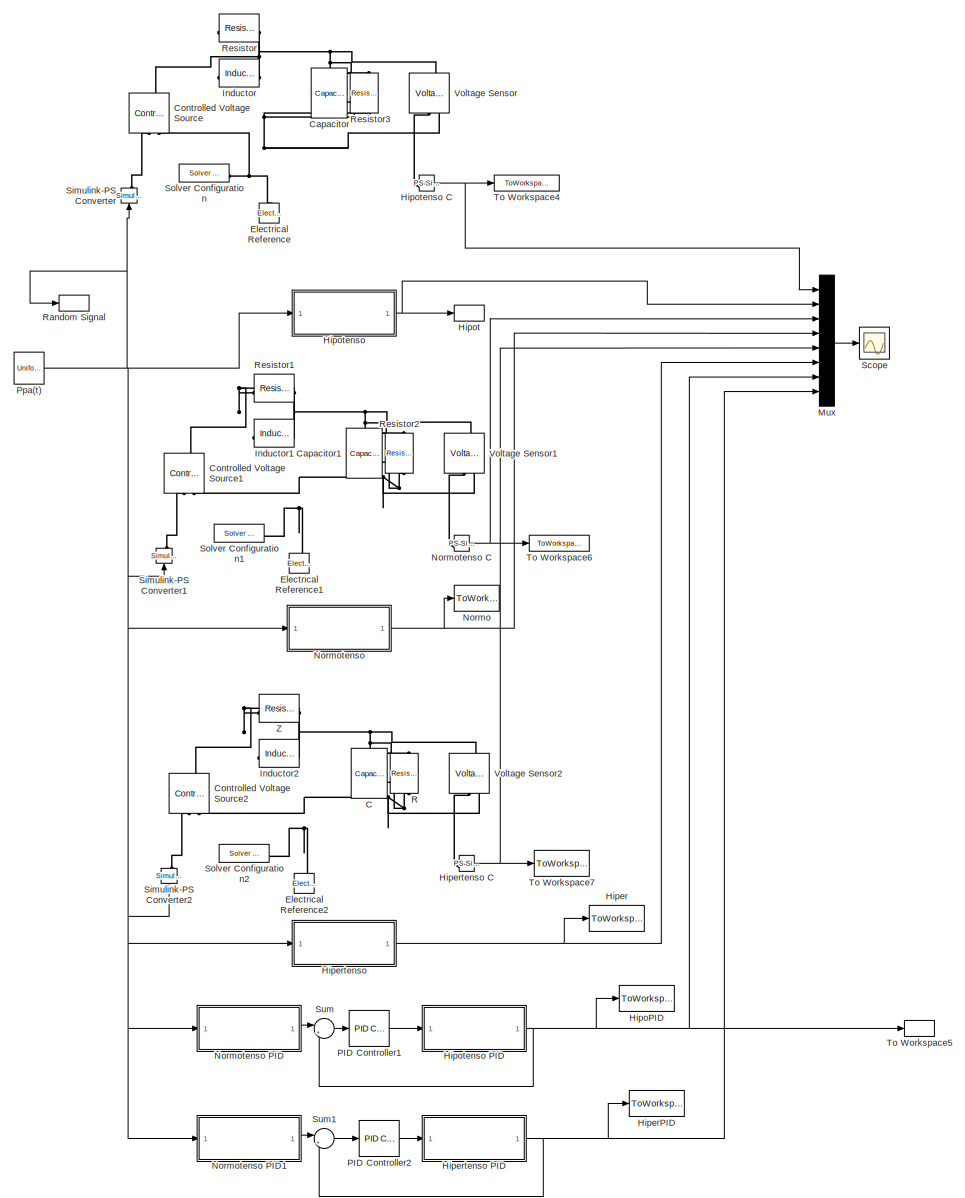
[diagram: root canvas - part 1/2, most of the canvas]
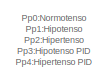
[diagram: root canvas - part 2/2, middle left region]
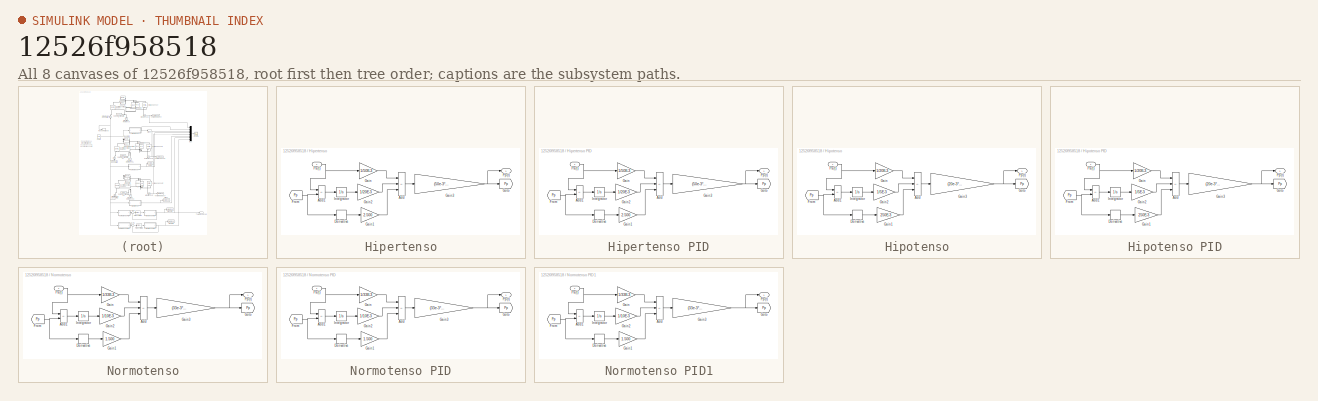
[diagram: thumbnail index - all 8 canvases of the model, root first then tree order]
MODEL slx_12526f958518
KIND model
CONFIG AbsTol = auto
CONFIG EnableMultiTasking = off
CONFIG FixedStep = auto
CONFIG MaxStep = 1E-3
CONFIG MinStep = auto
CONFIG RelTol = 1e-3
CONFIG SampleTimeConstraint = Unconstrained
CONFIG SolverName = ode23t
CONFIG StartTime = 0.0
CONFIG StopTime = 10.0
BLOCK [Reference] C  REF=ee_lib/Passive/Capacitor
  NameLocation = left
  SourceBlock = ee_lib/Passive/Capacitor
  SourceType = Capacitor
BLOCK [Reference] Capacitor  REF=ee_lib/Passive/Capacitor
  NameLocation = left
  SourceBlock = ee_lib/Passive/Capacitor
  SourceType = Capacitor
BLOCK [Reference] Capacitor1  REF=ee_lib/Passive/Capacitor
  NameLocation = left
  SourceBlock = ee_lib/Passive/Capacitor
  SourceType = Capacitor
BLOCK [Reference] Controlled Voltage Source  REF=fl_lib/Electrical/Electrical Sources/Controlled Voltage
Source
  NameLocation = right
  SourceBlock = fl_lib/Electrical/Electrical Sources/Controlled Voltage\nSource
  SourceType = Controlled Voltage\nSource
BLOCK [Reference] Controlled Voltage Source1  REF=fl_lib/Electrical/Electrical Sources/Controlled Voltage
Source
  NameLocation = right
  SourceBlock = fl_lib/Electrical/Electrical Sources/Controlled Voltage\nSource
  SourceType = Controlled Voltage\nSource
BLOCK [Reference] Controlled Voltage Source2  REF=fl_lib/Electrical/Electrical Sources/Controlled Voltage
Source
  NameLocation = right
  SourceBlock = fl_lib/Electrical/Electrical Sources/Controlled Voltage\nSource
  SourceType = Controlled Voltage\nSource
BLOCK [Reference] Electrical Reference  REF=fl_lib/Electrical/Electrical Elements/Electrical Reference
  NameLocation = right
  SourceBlock = fl_lib/Electrical/Electrical Elements/Electrical Reference
  SourceType = Electrical Reference
BLOCK [Reference] Electrical Reference1  REF=fl_lib/Electrical/Electrical Elements/Electrical Reference
  NameLocation = right
  SourceBlock = fl_lib/Electrical/Electrical Elements/Electrical Reference
  SourceType = Electrical Reference
BLOCK [Reference] Electrical Reference2  REF=fl_lib/Electrical/Electrical Elements/Electrical Reference
  NameLocation = right
  SourceBlock = fl_lib/Electrical/Electrical Elements/Electrical Reference
  SourceType = Electrical Reference
BLOCK [ToWorkspace] Hiper
  FixptAsFi = on
  MaxDataPoints = inf
  SampleTime = -1
  Save2DSignal = 2-D array (concatenate along first dimension)
  VariableName = Pp2
BLOCK [ToWorkspace] HiperPID
  FixptAsFi = on
  MaxDataPoints = inf
  SampleTime = -1
  Save2DSignal = 2-D array (concatenate along first dimension)
  VariableName = Pp4
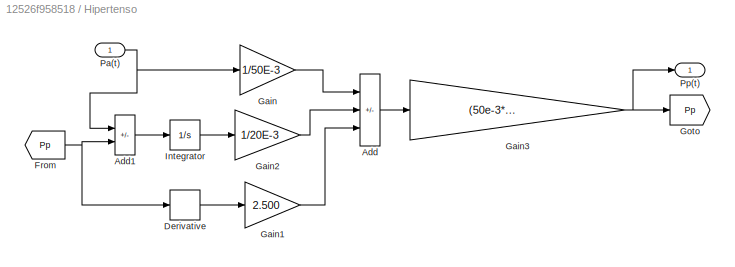
BLOCK [SubSystem] Hipertenso
BLOCK [Reference] Hipertenso C  REF=nesl_utility/PS-Simulink
Converter
  SourceBlock = nesl_utility/PS-Simulink\nConverter
  SourceType = PS-Simulink\nConverter
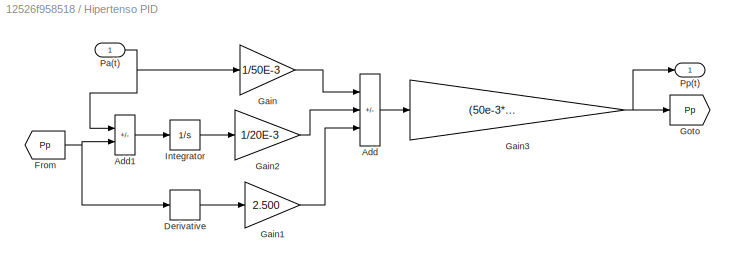
BLOCK [SubSystem] Hipertenso PID
BLOCK [Sum] Hipertenso PID/Add
  IconShape = rectangular
  Inputs = ++-
BLOCK [Sum] Hipertenso PID/Add1
  IconShape = rectangular
  Inputs = +-
BLOCK [Derivative] Hipertenso PID/Derivative
BLOCK [From] Hipertenso PID/From
  GotoTag = Pp
BLOCK [Gain] Hipertenso PID/Gain
  Gain = 1/50E-3
BLOCK [Gain] Hipertenso PID/Gain1
  Gain = 2.500
BLOCK [Gain] Hipertenso PID/Gain2
  Gain = 1/20E-3
BLOCK [Gain] Hipertenso PID/Gain3
  Gain = (50e-3*1400E-3)/(50E-3+1400E-3)
BLOCK [Goto] Hipertenso PID/Goto
  GotoTag = Pp
BLOCK [Integrator] Hipertenso PID/Integrator
BLOCK [Inport] Hipertenso PID/Pa(t)
BLOCK [Outport] Hipertenso PID/Pp(t)
BLOCK [Sum] Hipertenso/Add
  IconShape = rectangular
  Inputs = ++-
BLOCK [Sum] Hipertenso/Add1
  IconShape = rectangular
  Inputs = +-
BLOCK [Derivative] Hipertenso/Derivative
BLOCK [From] Hipertenso/From
  GotoTag = Pp
BLOCK [Gain] Hipertenso/Gain
  Gain = 1/50E-3
BLOCK [Gain] Hipertenso/Gain1
  Gain = 2.500
BLOCK [Gain] Hipertenso/Gain2
  Gain = 1/20E-3
BLOCK [Gain] Hipertenso/Gain3
  Gain = (50e-3*1400E-3)/(50E-3+1400E-3)
BLOCK [Goto] Hipertenso/Goto
  GotoTag = Pp
BLOCK [Integrator] Hipertenso/Integrator
BLOCK [Inport] Hipertenso/Pa(t)
BLOCK [Outport] Hipertenso/Pp(t)
BLOCK [ToWorkspace] HipoPID
  FixptAsFi = on
  MaxDataPoints = inf
  SampleTime = -1
  Save2DSignal = 2-D array (concatenate along first dimension)
  VariableName = Pp3
BLOCK [ToWorkspace] Hipot
  FixptAsFi = on
  MaxDataPoints = inf
  SampleTime = -1
  Save2DSignal = 2-D array (concatenate along first dimension)
  VariableName = Pp1
BLOCK [SubSystem] Hipotenso
BLOCK [Reference] Hipotenso C  REF=nesl_utility/PS-Simulink
Converter
  SourceBlock = nesl_utility/PS-Simulink\nConverter
  SourceType = PS-Simulink\nConverter
BLOCK [SubSystem] Hipotenso PID
BLOCK [Sum] Hipotenso PID/Add
  IconShape = rectangular
  Inputs = ++-
BLOCK [Sum] Hipotenso PID/Add1
  IconShape = rectangular
  Inputs = +-
BLOCK [Derivative] Hipotenso PID/Derivative
BLOCK [From] Hipotenso PID/From
  GotoTag = Pp
BLOCK [Gain] Hipotenso PID/Gain
  Gain = 1/20E-3
BLOCK [Gain] Hipotenso PID/Gain1
  Gain = 250E-3
BLOCK [Gain] Hipotenso PID/Gain2
  Gain = 1/5E-3
BLOCK [Gain] Hipotenso PID/Gain3
  Gain = (20e-3*600E-3)/(20e-3+600E-3)
BLOCK [Goto] Hipotenso PID/Goto
  GotoTag = Pp
BLOCK [Integrator] Hipotenso PID/Integrator
BLOCK [Inport] Hipotenso PID/Pa(t)
BLOCK [Outport] Hipotenso PID/Pp(t)
BLOCK [Sum] Hipotenso/Add
  IconShape = rectangular
  Inputs = ++-
BLOCK [Sum] Hipotenso/Add1
  IconShape = rectangular
  Inputs = +-
BLOCK [Derivative] Hipotenso/Derivative
BLOCK [From] Hipotenso/From
  GotoTag = Pp
BLOCK [Gain] Hipotenso/Gain
  Gain = 1/20E-3
BLOCK [Gain] Hipotenso/Gain1
  Gain = 250E-3
BLOCK [Gain] Hipotenso/Gain2
  Gain = 1/5E-3
BLOCK [Gain] Hipotenso/Gain3
  Gain = (20e-3*600E-3)/(20e-3+600E-3)
BLOCK [Goto] Hipotenso/Goto
  GotoTag = Pp
BLOCK [Integrator] Hipotenso/Integrator
BLOCK [Inport] Hipotenso/Pa(t)
BLOCK [Outport] Hipotenso/Pp(t)
BLOCK [Reference] Inductor  REF=ee_lib/Passive/Inductor
  NameLocation = top
  SourceBlock = ee_lib/Passive/Inductor
  SourceType = Inductor
BLOCK [Reference] Inductor1  REF=ee_lib/Passive/Inductor
  NameLocation = top
  SourceBlock = ee_lib/Passive/Inductor
  SourceType = Inductor
BLOCK [Reference] Inductor2  REF=ee_lib/Passive/Inductor
  NameLocation = top
  SourceBlock = ee_lib/Passive/Inductor
  SourceType = Inductor
BLOCK [Mux] Mux
  DisplayOption = bar
  Inputs = 8
BLOCK [ToWorkspace] Normo
  FixptAsFi = on
  MaxDataPoints = inf
  SampleTime = -1
  Save2DSignal = 2-D array (concatenate along first dimension)
  VariableName = Pp0
BLOCK [SubSystem] Normotenso
BLOCK [Reference] Normotenso C  REF=nesl_utility/PS-Simulink
Converter
  SourceBlock = nesl_utility/PS-Simulink\nConverter
  SourceType = PS-Simulink\nConverter
BLOCK [SubSystem] Normotenso PID
BLOCK [Sum] Normotenso PID/Add
  IconShape = rectangular
  Inputs = ++-
BLOCK [Sum] Normotenso PID/Add1
  IconShape = rectangular
  Inputs = +-
BLOCK [Derivative] Normotenso PID/Derivative
BLOCK [From] Normotenso PID/From
  GotoTag = Pp
BLOCK [Gain] Normotenso PID/Gain
  Gain = 1/33E-3
BLOCK [Gain] Normotenso PID/Gain1
  Gain = 1.500
BLOCK [Gain] Normotenso PID/Gain2
  Gain = 1/10E-3
BLOCK [Gain] Normotenso PID/Gain3
  Gain = (33e-3*950E-3)/(33E-3+950E-3)
BLOCK [Goto] Normotenso PID/Goto
  GotoTag = Pp
BLOCK [Integrator] Normotenso PID/Integrator
BLOCK [Inport] Normotenso PID/Pa(t)
BLOCK [Outport] Normotenso PID/Pp(t)
BLOCK [SubSystem] Normotenso PID1
BLOCK [Sum] Normotenso PID1/Add
  IconShape = rectangular
  Inputs = ++-
BLOCK [Sum] Normotenso PID1/Add1
  IconShape = rectangular
  Inputs = +-
BLOCK [Derivative] Normotenso PID1/Derivative
BLOCK [From] Normotenso PID1/From
  GotoTag = Pp
BLOCK [Gain] Normotenso PID1/Gain
  Gain = 1/33E-3
BLOCK [Gain] Normotenso PID1/Gain1
  Gain = 1.500
BLOCK [Gain] Normotenso PID1/Gain2
  Gain = 1/10E-3
BLOCK [Gain] Normotenso PID1/Gain3
  Gain = (33e-3*950E-3)/(33E-3+950E-3)
BLOCK [Goto] Normotenso PID1/Goto
  GotoTag = Pp
BLOCK [Integrator] Normotenso PID1/Integrator
BLOCK [Inport] Normotenso PID1/Pa(t)
BLOCK [Outport] Normotenso PID1/Pp(t)
BLOCK [Sum] Normotenso/Add
  IconShape = rectangular
  Inputs = ++-
BLOCK [Sum] Normotenso/Add1
  IconShape = rectangular
  Inputs = +-
BLOCK [Derivative] Normotenso/Derivative
BLOCK [From] Normotenso/From
  GotoTag = Pp
BLOCK [Gain] Normotenso/Gain
  Gain = 1/33E-3
BLOCK [Gain] Normotenso/Gain1
  Gain = 1.500
BLOCK [Gain] Normotenso/Gain2
  Gain = 1/10E-3
BLOCK [Gain] Normotenso/Gain3
  Gain = (33e-3*950E-3)/(33E-3+950E-3)
BLOCK [Goto] Normotenso/Goto
  GotoTag = Pp
BLOCK [Integrator] Normotenso/Integrator
BLOCK [Inport] Normotenso/Pa(t)
BLOCK [Outport] Normotenso/Pp(t)
BLOCK [Reference] PID Controller1  REF=slpidlib/PID Controller
  LibrarySourceBlock = simulink/Continuous/PID Controller
  SourceBlock = slpidlib/PID Controller
  SourceType = PID 1dof
BLOCK [Reference] PID Controller2  REF=slpidlib/PID Controller
  LibrarySourceBlock = simulink/Continuous/PID Controller
  SourceBlock = slpidlib/PID Controller
  SourceType = PID 1dof
BLOCK [UniformRandomNumber] Ppa(t)
  Minimum = -0.2
  SampleTime = 0.5
  Seed = 106
BLOCK [Reference] R  REF=ee_lib/Passive/Resistor
  NameLocation = left
  SourceBlock = ee_lib/Passive/Resistor
  SourceType = Resistor
BLOCK [ToWorkspace] Random Signal
  FixptAsFi = on
  MaxDataPoints = inf
  SampleTime = -1
  Save2DSignal = 2-D array (concatenate along first dimension)
  VariableName = Ppa
BLOCK [Reference] Resistor  REF=ee_lib/Passive/Resistor
  SourceBlock = ee_lib/Passive/Resistor
  SourceType = Resistor
BLOCK [Reference] Resistor1  REF=ee_lib/Passive/Resistor
  SourceBlock = ee_lib/Passive/Resistor
  SourceType = Resistor
BLOCK [Reference] Resistor2  REF=ee_lib/Passive/Resistor
  NameLocation = left
  SourceBlock = ee_lib/Passive/Resistor
  SourceType = Resistor
BLOCK [Reference] Resistor3  REF=ee_lib/Passive/Resistor
  NameLocation = left
  SourceBlock = ee_lib/Passive/Resistor
  SourceType = Resistor
BLOCK [Scope] Scope
  Floating = off
  NumInputPorts = 1
  ScopeSpecificationString = Simulink.scopes.TimeScopeBlockCfg('CurrentConfiguration', extmgr.ConfigurationSet(extmgr.Configuration('Core','General UI',true,'FigureColor',[1 1 1]),extmgr.Configuration('Core','Source UI',true),extmgr.Configuration('Sources','WiredSimulink',true),extmgr.Configuration('Visuals','Time Domain',true,'SerializedDisplays',{struct('MinYLimReal','-0.2','MaxYLimReal','1.2','YLabelReal','','MinYLimMag','...<+2402ch>
BLOCK [Reference] Simulink-PS Converter  REF=nesl_utility/Simulink-PS
Converter
  NameLocation = right
  SourceBlock = nesl_utility/Simulink-PS\nConverter
  SourceType = Simulink-PS\nConverter
BLOCK [Reference] Simulink-PS Converter1  REF=nesl_utility/Simulink-PS
Converter
  NameLocation = right
  SourceBlock = nesl_utility/Simulink-PS\nConverter
  SourceType = Simulink-PS\nConverter
BLOCK [Reference] Simulink-PS Converter2  REF=nesl_utility/Simulink-PS
Converter
  NameLocation = right
  SourceBlock = nesl_utility/Simulink-PS\nConverter
  SourceType = Simulink-PS\nConverter
BLOCK [Reference] Solver Configuration  REF=nesl_utility/Solver
Configuration
  SourceBlock = nesl_utility/Solver\nConfiguration
  SourceType = Solver\nConfiguration
BLOCK [Reference] Solver Configuration1  REF=nesl_utility/Solver
Configuration
  SourceBlock = nesl_utility/Solver\nConfiguration
  SourceType = Solver\nConfiguration
BLOCK [Reference] Solver Configuration2  REF=nesl_utility/Solver
Configuration
  SourceBlock = nesl_utility/Solver\nConfiguration
  SourceType = Solver\nConfiguration
BLOCK [Sum] Sum
  Inputs = |+-
BLOCK [Sum] Sum1
  Inputs = |+-
BLOCK [ToWorkspace] To Workspace4
  FixptAsFi = on
  MaxDataPoints = inf
  SampleTime = -1
  Save2DSignal = 2-D array (concatenate along first dimension)
  VariableName = HipoC
BLOCK [ToWorkspace] To Workspace5
  FixptAsFi = on
  MaxDataPoints = inf
  SampleTime = -1
  VariableName = PID
BLOCK [ToWorkspace] To Workspace6
  FixptAsFi = on
  MaxDataPoints = inf
  SampleTime = -1
  Save2DSignal = 2-D array (concatenate along first dimension)
  VariableName = NormoC
BLOCK [ToWorkspace] To Workspace7
  FixptAsFi = on
  MaxDataPoints = inf
  SampleTime = -1
  Save2DSignal = 2-D array (concatenate along first dimension)
  VariableName = HiperC
BLOCK [Reference] Voltage Sensor  REF=fl_lib/Electrical/Electrical Sensors/Voltage Sensor
  NameLocation = right
  SourceBlock = fl_lib/Electrical/Electrical Sensors/Voltage Sensor
  SourceType = Voltage Sensor
BLOCK [Reference] Voltage Sensor1  REF=fl_lib/Electrical/Electrical Sensors/Voltage Sensor
  NameLocation = right
  SourceBlock = fl_lib/Electrical/Electrical Sensors/Voltage Sensor
  SourceType = Voltage Sensor
BLOCK [Reference] Voltage Sensor2  REF=fl_lib/Electrical/Electrical Sensors/Voltage Sensor
  NameLocation = right
  SourceBlock = fl_lib/Electrical/Electrical Sensors/Voltage Sensor
  SourceType = Voltage Sensor
BLOCK [Reference] Z  REF=ee_lib/Passive/Resistor
  SourceBlock = ee_lib/Passive/Resistor
  SourceType = Resistor
ANNOTATION (root): Pp0:Normotenso Pp1:Hipotenso Pp2:Hipertenso Pp3:Hipotenso PID Pp4:Hipertenso PID
NET Hipertenso C:1 -> Mux:5, To Workspace7:1
LINE Hipertenso PID/Add1:1 -> Hipertenso PID/Integrator:1
LINE Hipertenso PID/Add:1 -> Hipertenso PID/Gain3:1
LINE Hipertenso PID/Derivative:1 -> Hipertenso PID/Gain1:1
NET Hipertenso PID/From:1 -> Hipertenso PID/Add1:2, Hipertenso PID/Derivative:1
LINE Hipertenso PID/Gain1:1 -> Hipertenso PID/Add:3
LINE Hipertenso PID/Gain2:1 -> Hipertenso PID/Add:2
NET Hipertenso PID/Gain3:1 -> Hipertenso PID/Goto:1, Hipertenso PID/Pp(t):1
LINE Hipertenso PID/Gain:1 -> Hipertenso PID/Add:1
LINE Hipertenso PID/Integrator:1 -> Hipertenso PID/Gain2:1
NET Hipertenso PID/Pa(t):1 -> Hipertenso PID/Add1:1, Hipertenso PID/Gain:1
NET Hipertenso PID:1 -> HiperPID:1, Mux:8, Sum1:2
LINE Hipertenso/Add1:1 -> Hipertenso/Integrator:1
LINE Hipertenso/Add:1 -> Hipertenso/Gain3:1
LINE Hipertenso/Derivative:1 -> Hipertenso/Gain1:1
NET Hipertenso/From:1 -> Hipertenso/Add1:2, Hipertenso/Derivative:1
LINE Hipertenso/Gain1:1 -> Hipertenso/Add:3
LINE Hipertenso/Gain2:1 -> Hipertenso/Add:2
NET Hipertenso/Gain3:1 -> Hipertenso/Goto:1, Hipertenso/Pp(t):1
LINE Hipertenso/Gain:1 -> Hipertenso/Add:1
LINE Hipertenso/Integrator:1 -> Hipertenso/Gain2:1
NET Hipertenso/Pa(t):1 -> Hipertenso/Add1:1, Hipertenso/Gain:1
NET Hipertenso:1 -> Hiper:1, Mux:6
NET Hipotenso C:1 -> Mux:1, To Workspace4:1
LINE Hipotenso PID/Add1:1 -> Hipotenso PID/Integrator:1
LINE Hipotenso PID/Add:1 -> Hipotenso PID/Gain3:1
LINE Hipotenso PID/Derivative:1 -> Hipotenso PID/Gain1:1
NET Hipotenso PID/From:1 -> Hipotenso PID/Add1:2, Hipotenso PID/Derivative:1
LINE Hipotenso PID/Gain1:1 -> Hipotenso PID/Add:3
LINE Hipotenso PID/Gain2:1 -> Hipotenso PID/Add:2
NET Hipotenso PID/Gain3:1 -> Hipotenso PID/Goto:1, Hipotenso PID/Pp(t):1
LINE Hipotenso PID/Gain:1 -> Hipotenso PID/Add:1
LINE Hipotenso PID/Integrator:1 -> Hipotenso PID/Gain2:1
NET Hipotenso PID/Pa(t):1 -> Hipotenso PID/Add1:1, Hipotenso PID/Gain:1
NET Hipotenso PID:1 -> HipoPID:1, Mux:7, Sum:2, To Workspace5:1
LINE Hipotenso/Add1:1 -> Hipotenso/Integrator:1
LINE Hipotenso/Add:1 -> Hipotenso/Gain3:1
LINE Hipotenso/Derivative:1 -> Hipotenso/Gain1:1
NET Hipotenso/From:1 -> Hipotenso/Add1:2, Hipotenso/Derivative:1
LINE Hipotenso/Gain1:1 -> Hipotenso/Add:3
LINE Hipotenso/Gain2:1 -> Hipotenso/Add:2
NET Hipotenso/Gain3:1 -> Hipotenso/Goto:1, Hipotenso/Pp(t):1
LINE Hipotenso/Gain:1 -> Hipotenso/Add:1
LINE Hipotenso/Integrator:1 -> Hipotenso/Gain2:1
NET Hipotenso/Pa(t):1 -> Hipotenso/Add1:1, Hipotenso/Gain:1
NET Hipotenso:1 -> Hipot:1, Mux:2
LINE Mux:1 -> Scope:1
NET Normotenso C:1 -> Mux:3, To Workspace6:1
LINE Normotenso PID/Add1:1 -> Normotenso PID/Integrator:1
LINE Normotenso PID/Add:1 -> Normotenso PID/Gain3:1
LINE Normotenso PID/Derivative:1 -> Normotenso PID/Gain1:1
NET Normotenso PID/From:1 -> Normotenso PID/Add1:2, Normotenso PID/Derivative:1
LINE Normotenso PID/Gain1:1 -> Normotenso PID/Add:3
LINE Normotenso PID/Gain2:1 -> Normotenso PID/Add:2
NET Normotenso PID/Gain3:1 -> Normotenso PID/Goto:1, Normotenso PID/Pp(t):1
LINE Normotenso PID/Gain:1 -> Normotenso PID/Add:1
LINE Normotenso PID/Integrator:1 -> Normotenso PID/Gain2:1
NET Normotenso PID/Pa(t):1 -> Normotenso PID/Add1:1, Normotenso PID/Gain:1
LINE Normotenso PID1/Add1:1 -> Normotenso PID1/Integrator:1
LINE Normotenso PID1/Add:1 -> Normotenso PID1/Gain3:1
LINE Normotenso PID1/Derivative:1 -> Normotenso PID1/Gain1:1
NET Normotenso PID1/From:1 -> Normotenso PID1/Add1:2, Normotenso PID1/Derivative:1
LINE Normotenso PID1/Gain1:1 -> Normotenso PID1/Add:3
LINE Normotenso PID1/Gain2:1 -> Normotenso PID1/Add:2
NET Normotenso PID1/Gain3:1 -> Normotenso PID1/Goto:1, Normotenso PID1/Pp(t):1
LINE Normotenso PID1/Gain:1 -> Normotenso PID1/Add:1
LINE Normotenso PID1/Integrator:1 -> Normotenso PID1/Gain2:1
NET Normotenso PID1/Pa(t):1 -> Normotenso PID1/Add1:1, Normotenso PID1/Gain:1
LINE Normotenso PID1:1 -> Sum1:1
LINE Normotenso PID:1 -> Sum:1
LINE Normotenso/Add1:1 -> Normotenso/Integrator:1
LINE Normotenso/Add:1 -> Normotenso/Gain3:1
LINE Normotenso/Derivative:1 -> Normotenso/Gain1:1
NET Normotenso/From:1 -> Normotenso/Add1:2, Normotenso/Derivative:1
LINE Normotenso/Gain1:1 -> Normotenso/Add:3
LINE Normotenso/Gain2:1 -> Normotenso/Add:2
NET Normotenso/Gain3:1 -> Normotenso/Goto:1, Normotenso/Pp(t):1
LINE Normotenso/Gain:1 -> Normotenso/Add:1
LINE Normotenso/Integrator:1 -> Normotenso/Gain2:1
NET Normotenso/Pa(t):1 -> Normotenso/Add1:1, Normotenso/Gain:1
NET Normotenso:1 -> Mux:4, Normo:1
LINE PID Controller1:1 -> Hipotenso PID:1
LINE PID Controller2:1 -> Hipertenso PID:1
NET Ppa(t):1 -> Hipertenso:1, Hipotenso:1, Normotenso PID1:1, Normotenso PID:1, Normotenso:1, Random Signal:1, Simulink-PS Converter1:1, Simulink-PS Converter2:1, Simulink-PS Converter:1
LINE Sum1:1 -> PID Controller2:1
LINE Sum:1 -> PID Controller1:1
PNET net1: C:LConn1 -- Inductor2:LConn1 -- R:LConn1 -- Voltage Sensor2:LConn1 -- Z:RConn1
PNET net2: C:RConn1 -- Controlled Voltage Source2:RConn2 -- Electrical Reference2:LConn1 -- R:RConn1 -- Solver Configuration2:RConn1 -- Voltage Sensor2:RConn2
PNET net3: Capacitor1:LConn1 -- Inductor1:LConn1 -- Resistor1:RConn1 -- Resistor2:LConn1 -- Voltage Sensor1:LConn1
PNET net4: Capacitor1:RConn1 -- Controlled Voltage Source1:RConn2 -- Electrical Reference1:LConn1 -- Resistor2:RConn1 -- Solver Configuration1:RConn1 -- Voltage Sensor1:RConn2
PNET net5: Capacitor:LConn1 -- Inductor:LConn1 -- Resistor3:LConn1 -- Resistor:RConn1 -- Voltage Sensor:LConn1
PNET net6: Capacitor:RConn1 -- Controlled Voltage Source:RConn2 -- Electrical Reference:LConn1 -- Resistor3:RConn1 -- Solver Configuration:RConn1 -- Voltage Sensor:RConn2
PNET net7: Controlled Voltage Source1:LConn1 -- Inductor1:RConn1 -- Resistor1:LConn1
PLINE Controlled Voltage Source1:RConn1 -- Simulink-PS Converter1:RConn1
PNET net8: Controlled Voltage Source2:LConn1 -- Inductor2:RConn1 -- Z:LConn1
PLINE Controlled Voltage Source2:RConn1 -- Simulink-PS Converter2:RConn1
PNET net9: Controlled Voltage Source:LConn1 -- Inductor:RConn1 -- Resistor:LConn1
PLINE Controlled Voltage Source:RConn1 -- Simulink-PS Converter:RConn1
PLINE Hipertenso C:LConn1 -- Voltage Sensor2:RConn1
PLINE Hipotenso C:LConn1 -- Voltage Sensor:RConn1
PLINE Normotenso C:LConn1 -- Voltage Sensor1:RConn1
note: NET lines group one-source signal fan-out (src -> all destinations, sorted); 1:1 wires keep LINE; PNET lines group multi-terminal physical nets as a canonical sorted terminal list (undirected conserving connections); 2-terminal nets keep the pairwise PLINE form
